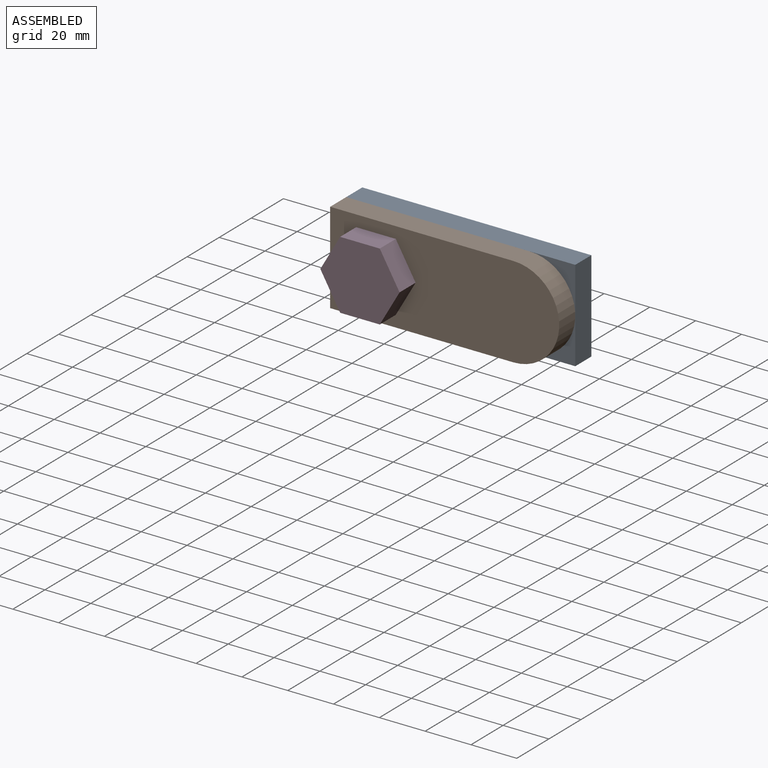
[diagram: assembled view]
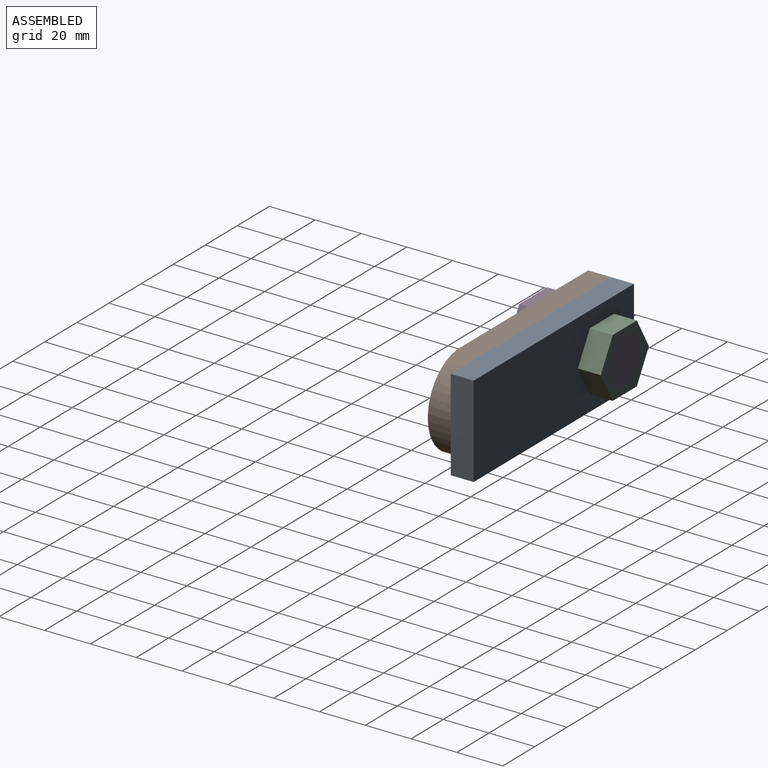
[diagram: assembled view, second angle]
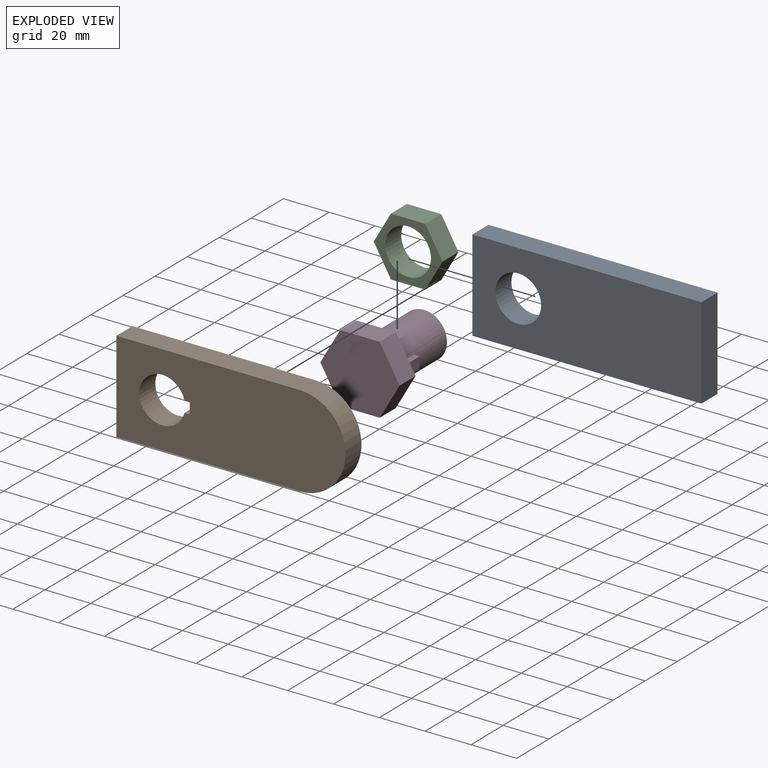
[diagram: exploded view]
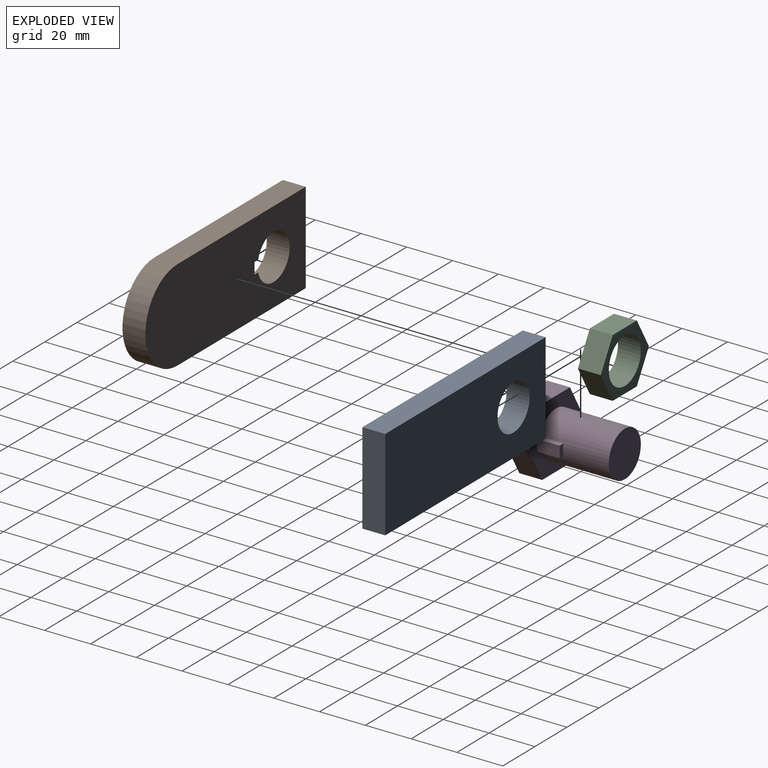
[diagram: exploded view, second angle]
ASSEMBLY  parts=4 mates=3
PART A: 7 faces, bbox 100x10x40 mm
  f0: plane 40x10mm, normal (1,0,0), area 400mm2, adj f1,f4,f5,f6
  f1: plane 100x10mm, normal (0,0,1), area 1000mm2, adj f0,f2,f5,f6
  f2: plane 40x10mm, normal (-1,0,0), area 400mm2, adj f1,f4,f5,f6
  f3: cylinder r=10mm len=20mm, axis (0,1,0), area 628.3mm2, adj f5,f6
  f4: plane 100x10mm, normal (0,0,-1), area 1000mm2, adj f0,f2,f5,f6
  f5: plane 100x40mm, normal (0,-1,0), area 3685.8mm2, adj f0,f1,f2,f3,f4
  f6: plane 100x40mm, normal (0,1,0), area 3685.8mm2, adj f0,f1,f2,f3,f4
PART B: 10 faces, bbox 100x10x40 mm
  f0: plane 80x10mm, normal (0,0,1), area 800mm2, adj f1,f7,f8,f9
  f1: plane 40x10mm, normal (-1,0,0), area 400mm2, adj f0,f2,f8,f9
  f2: plane 80x10mm, normal (0,0,-1), area 800mm2, adj f1,f7,f8,f9
  f3: plane 10x5mm, normal (-1,0,0), area 50mm2, adj f4,f6,f8,f9
  f4: plane 10x2.32mm, normal (0,0,1), area 23.2mm2, adj f3,f5,f8,f9
  f5: cylinder r=10mm len=20mm, axis (0,1,0), area 577.8mm2, adj f4,f6,f8,f9
  f6: plane 10x2.32mm, normal (0,0,-1), area 23.2mm2, adj f3,f5,f8,f9
  f7: cylinder r=20mm len=40mm, axis (0,1,0), area 628.3mm2, adj f0,f2,f8,f9
  f8: plane 100x40mm, normal (0,-1,0), area 3503.6mm2, adj f0,f1,f2,f3,f4,f5,f6,f7
  f9: plane 100x40mm, normal (0,1,0), area 3503.6mm2, adj f0,f1,f2,f3,f4,f5,f6,f7
PART C: 9 faces, bbox 30x10x26 mm
  f0: plane 12.99x10mm, normal (0.87,0,-0.5), area 150mm2, adj f1,f6,f7,f8
  f1: plane 12.99x10mm, normal (0.87,0,0.5), area 150mm2, adj f0,f2,f7,f8
  f2: plane 15x10mm, normal (0,0,1), area 150mm2, adj f1,f3,f7,f8
  f3: plane 12.99x10mm, normal (-0.87,0,0.5), area 150mm2, adj f2,f4,f7,f8
  f4: plane 12.99x10mm, normal (-0.87,0,-0.5), area 150mm2, adj f3,f6,f7,f8
  f5: cylinder r=10mm len=20mm, axis (0,1,0), area 628.3mm2, adj f7,f8
  f6: plane 15x10mm, normal (0,0,-1), area 150mm2, adj f0,f4,f7,f8
  f7: plane 30x25.98mm, normal (0,-1,0), area 270.4mm2, adj f0,f1,f2,f3,f4,f5,f6
  f8: plane 30x25.98mm, normal (0,1,0), area 270.4mm2, adj f0,f1,f2,f3,f4,f5,f6
PART D: 14 faces, bbox 34.6x40x30 mm
  f0: cylinder r=10mm len=30mm, axis (0,1,0), area 1834.4mm2, adj f1,f3,f4,f5,f6
  f1: plane 20x20mm, normal (0,-1,0), area 314.2mm2, adj f0
  f2: plane 10x5mm, normal (1,0,0), area 50mm2, adj f3,f4,f5,f6
  f3: plane 10x2.32mm, normal (0,0,1), area 23.2mm2, adj f0,f2,f5,f6
  f4: plane 10x2.32mm, normal (0,0,-1), area 23.2mm2, adj f0,f2,f5,f6
  f5: plane 5x2.32mm, normal (0,-1,0), area 10.5mm2, adj f0,f2,f3,f4
  f6: plane 34.59x29.95mm, normal (0,-1,0), area 452.3mm2, adj f0,f2,f3,f4,f7,f8,f9,f10
  f7: plane 14.98x10mm, normal (0.87,0,-0.5), area 172.9mm2, adj f6,f8,f12,f13
  f8: plane 14.98x10mm, normal (0.87,0,0.5), area 172.9mm2, adj f6,f7,f9,f13
  f9: plane 17.29x10mm, normal (0,0,1), area 172.9mm2, adj f6,f8,f10,f13
  f10: plane 14.98x10mm, normal (-0.87,0,0.5), area 172.9mm2, adj f6,f9,f11,f13
  f11: plane 14.98x10mm, normal (-0.87,0,-0.5), area 172.9mm2, adj f6,f10,f12,f13
  f12: plane 17.29x10mm, normal (0,0,-1), area 172.9mm2, adj f6,f7,f11,f13
  f13: plane 34.59x29.95mm, normal (0,1,0), area 777mm2, adj f7,f8,f9,f10,f11,f12
PLACE A t=(8.07,-25.11,-43.84)mm fixed
PLACE B t=(8.07,-35.11,-43.84)mm
PLACE C t=(75.5,-15.11,-23.84)mm
PLACE D rot(axis=(1,0,0),180deg) t=(93.54,-45.11,-23.84)mm
MATE fastened D.f2 <-> B.f3  axis (1,0,0) through (-59.93,-40.11,-23.84)mm
MATE revolute A.f3 <-> B.f5  axis (0,-1,0) through (-71.93,-35.11,-23.84)mm
MATE revolute A.f3 <-> C.f5  axis (0,1,0) through (-71.93,-25.11,-23.84)mm
